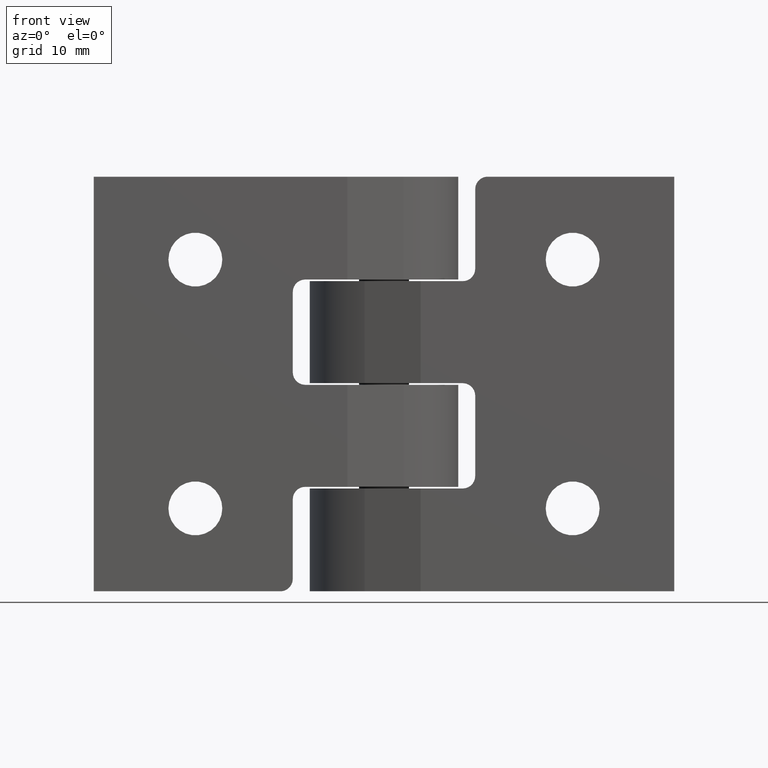
[diagram: clean part render]
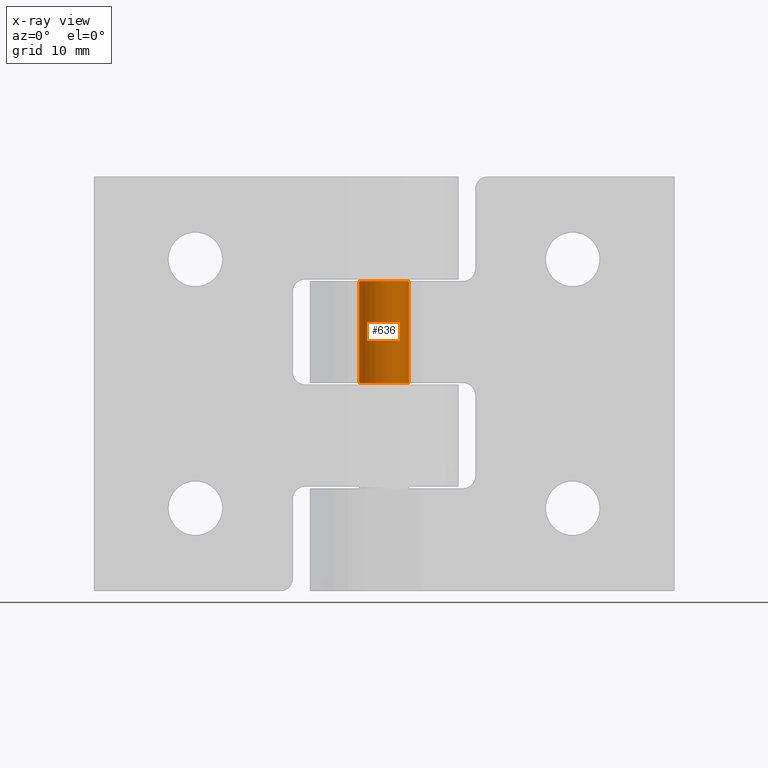
[diagram: x-ray — body ghosted, one internal face saturated and labeled with its STEP entity id]
A machine part, front view, then the same camera in x-ray: the body is ghosted and one INTERNAL B-rep face — a face not visible from any outside direction — is saturated and labeled: STEP entity #636.
In plain terms, the highlighted cylindrical surface (bore or boss wall) has radius 3 mm, axis along (-0, 0, -1).
Its self-contained STEP definition (entity closure, byte-faithful):
#40=LINE('',#1061,#88);
#88=VECTOR('',#859,3.);
#136=CYLINDRICAL_SURFACE('',#748,3.);
#164=FACE_OUTER_BOUND('',#201,.T.);
#201=EDGE_LOOP('',(#459,#460,#461,#462));
#252=CIRCLE('',#749,3.);
#253=CIRCLE('',#750,3.);
#292=VERTEX_POINT('',#1058);
#293=VERTEX_POINT('',#1060);
#358=EDGE_CURVE('',#292,#292,#252,.T.);
#359=EDGE_CURVE('',#292,#293,#40,.T.);
#360=EDGE_CURVE('',#293,#293,#253,.T.);
#459=ORIENTED_EDGE('',*,*,#358,.F.);
#460=ORIENTED_EDGE('',*,*,#359,.T.);
#461=ORIENTED_EDGE('',*,*,#360,.F.);
#462=ORIENTED_EDGE('',*,*,#359,.F.);
#636=ADVANCED_FACE('',(#164),#136,.F.);
#748=AXIS2_PLACEMENT_3D('',#1057,#855,#856);
#749=AXIS2_PLACEMENT_3D('',#1059,#857,#858);
#750=AXIS2_PLACEMENT_3D('',#1062,#860,#861);
#855=DIRECTION('center_axis',(0.,0.,1.));
#856=DIRECTION('ref_axis',(-1.,0.,0.));
#857=DIRECTION('center_axis',(0.,0.,1.));
#858=DIRECTION('ref_axis',(-1.,0.,0.));
#859=DIRECTION('',(0.,0.,1.));
#860=DIRECTION('center_axis',(0.,0.,-1.));
#861=DIRECTION('ref_axis',(-1.,0.,0.));
#1057=CARTESIAN_POINT('Origin',(0.,0.,0.));
#1058=CARTESIAN_POINT('',(3.,3.67394039744206E-16,-12.4));
#1059=CARTESIAN_POINT('Origin',(0.,0.,-12.4));
#1060=CARTESIAN_POINT('',(3.,-3.67394039744206E-16,-0.1));
#1061=CARTESIAN_POINT('',(3.,3.67394039744206E-16,0.));
#1062=CARTESIAN_POINT('Origin',(0.,0.,-0.1));